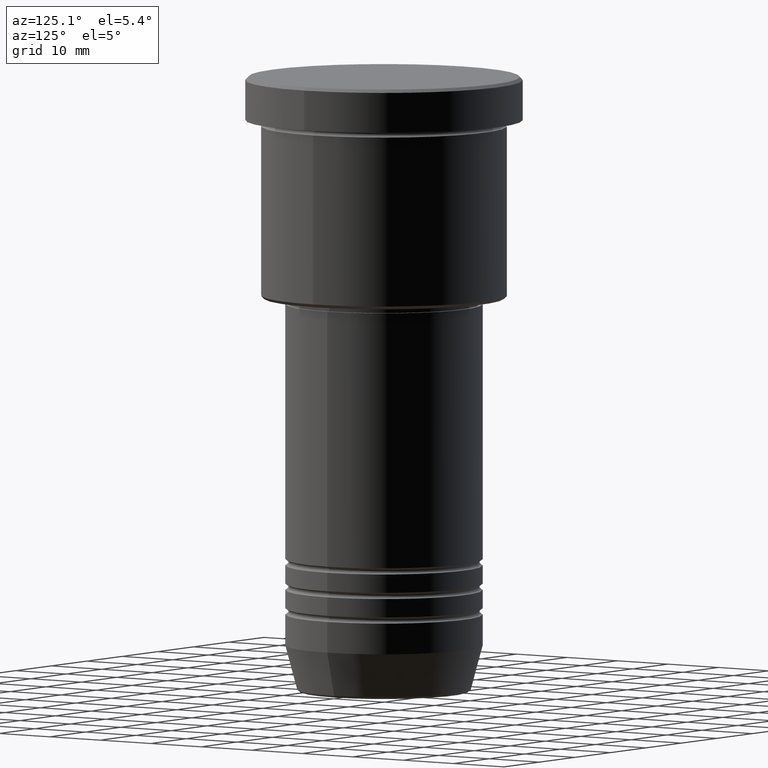
[diagram: clean part render]
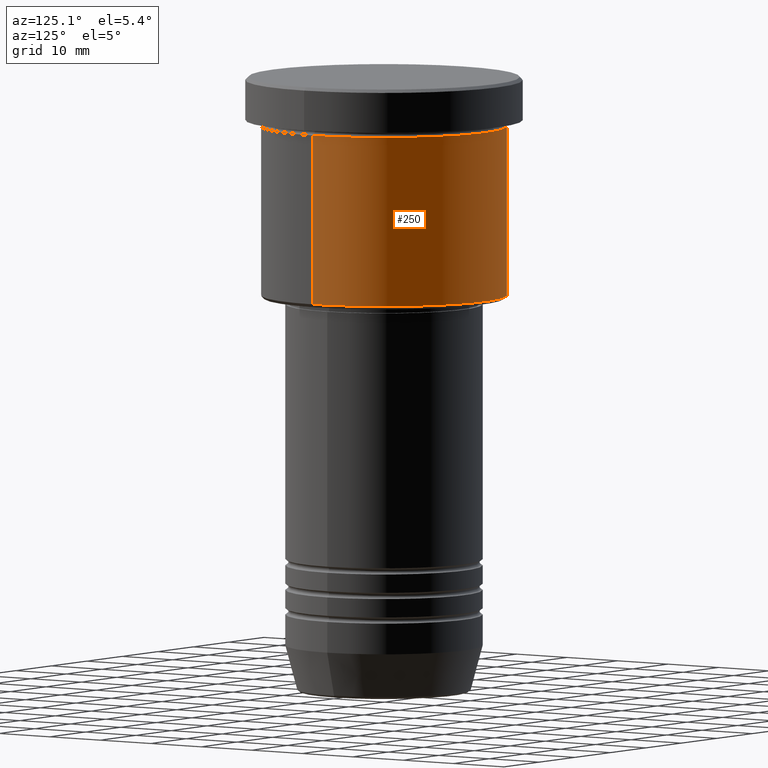
[diagram: same view with one face highlighted and labeled with its STEP entity id]
A machine part, auxiliary view. The second image highlights one B-rep face of the part: STEP entity #250.
In plain terms, the highlighted cylindrical surface (partial cylindrical patch) has radius 20 mm, axis along (-0, -0, 1).
Its self-contained STEP definition (entity closure, byte-faithful):
#6 = CARTESIAN_POINT ( 'NONE',  ( 0.000000000000000000, 0.000000000000000000, -35.49999999999998579 ) ) ;
#26 = DIRECTION ( 'NONE',  ( 1.000000000000000000, 0.000000000000000000, 0.000000000000000000 ) ) ;
#37 = ORIENTED_EDGE ( 'NONE', *, *, #140, .T. ) ;
#91 = VECTOR ( 'NONE', #444, 1000.000000000000000 ) ;
#124 = VERTEX_POINT ( 'NONE', #733 ) ;
#134 = CARTESIAN_POINT ( 'NONE',  ( -20.00000000000000355, 2.449293598294706907E-15, 0.000000000000000000 ) ) ;
#140 = EDGE_CURVE ( 'NONE', #309, #212, #446, .T. ) ;
#145 = LINE ( 'NONE', #134, #854 ) ;
#167 = AXIS2_PLACEMENT_3D ( 'NONE', #452, #496, #968 ) ;
#191 = EDGE_LOOP ( 'NONE', ( #37, #761, #439, #672 ) ) ;
#201 = EDGE_CURVE ( 'NONE', #212, #124, #145, .T. ) ;
#212 = VERTEX_POINT ( 'NONE', #811 ) ;
#216 = EDGE_CURVE ( 'NONE', #309, #339, #618, .T. ) ;
#250 = ADVANCED_FACE ( 'NONE', ( #477 ), #1115, .T. ) ;
#309 = VERTEX_POINT ( 'NONE', #1105 ) ;
#339 = VERTEX_POINT ( 'NONE', #652 ) ;
#359 = EDGE_CURVE ( 'NONE', #339, #124, #545, .T. ) ;
#439 = ORIENTED_EDGE ( 'NONE', *, *, #359, .F. ) ;
#444 = DIRECTION ( 'NONE',  ( -0.000000000000000000, -0.000000000000000000, 1.000000000000000000 ) ) ;
#446 = CIRCLE ( 'NONE', #673, 20.00000000000000355 ) ;
#452 = CARTESIAN_POINT ( 'NONE',  ( 0.000000000000000000, 0.000000000000000000, -7.999999999999994671 ) ) ;
#477 = FACE_OUTER_BOUND ( 'NONE', #191, .T. ) ;
#481 = DIRECTION ( 'NONE',  ( -0.000000000000000000, -0.000000000000000000, 1.000000000000000000 ) ) ;
#496 = DIRECTION ( 'NONE',  ( -0.000000000000000000, -0.000000000000000000, 1.000000000000000000 ) ) ;
#500 = DIRECTION ( 'NONE',  ( -0.000000000000000000, -0.000000000000000000, 1.000000000000000000 ) ) ;
#545 = CIRCLE ( 'NONE', #167, 20.00000000000000000 ) ;
#618 = LINE ( 'NONE', #1172, #91 ) ;
#639 = AXIS2_PLACEMENT_3D ( 'NONE', #824, #481, #26 ) ;
#652 = CARTESIAN_POINT ( 'NONE',  ( 20.00000000000000000, 0.000000000000000000, -7.999999999999994671 ) ) ;
#672 = ORIENTED_EDGE ( 'NONE', *, *, #216, .F. ) ;
#673 = AXIS2_PLACEMENT_3D ( 'NONE', #6, #949, #1125 ) ;
#733 = CARTESIAN_POINT ( 'NONE',  ( -20.00000000000000000, 2.449293598294706513E-15, -7.999999999999994671 ) ) ;
#761 = ORIENTED_EDGE ( 'NONE', *, *, #201, .T. ) ;
#811 = CARTESIAN_POINT ( 'NONE',  ( -20.00000000000000355, 2.449293598294706907E-15, -35.49999999999998579 ) ) ;
#824 = CARTESIAN_POINT ( 'NONE',  ( 0.000000000000000000, 0.000000000000000000, 0.000000000000000000 ) ) ;
#854 = VECTOR ( 'NONE', #500, 1000.000000000000000 ) ;
#949 = DIRECTION ( 'NONE',  ( -0.000000000000000000, -0.000000000000000000, 1.000000000000000000 ) ) ;
#968 = DIRECTION ( 'NONE',  ( 1.000000000000000000, 0.000000000000000000, 0.000000000000000000 ) ) ;
#1105 = CARTESIAN_POINT ( 'NONE',  ( 20.00000000000000355, 0.000000000000000000, -35.49999999999998579 ) ) ;
#1115 = CYLINDRICAL_SURFACE ( 'NONE', #639, 20.00000000000000355 ) ;
#1125 = DIRECTION ( 'NONE',  ( -1.000000000000000000, 0.000000000000000000, 0.000000000000000000 ) ) ;
#1172 = CARTESIAN_POINT ( 'NONE',  ( 20.00000000000000355, 0.000000000000000000, 0.000000000000000000 ) ) ;